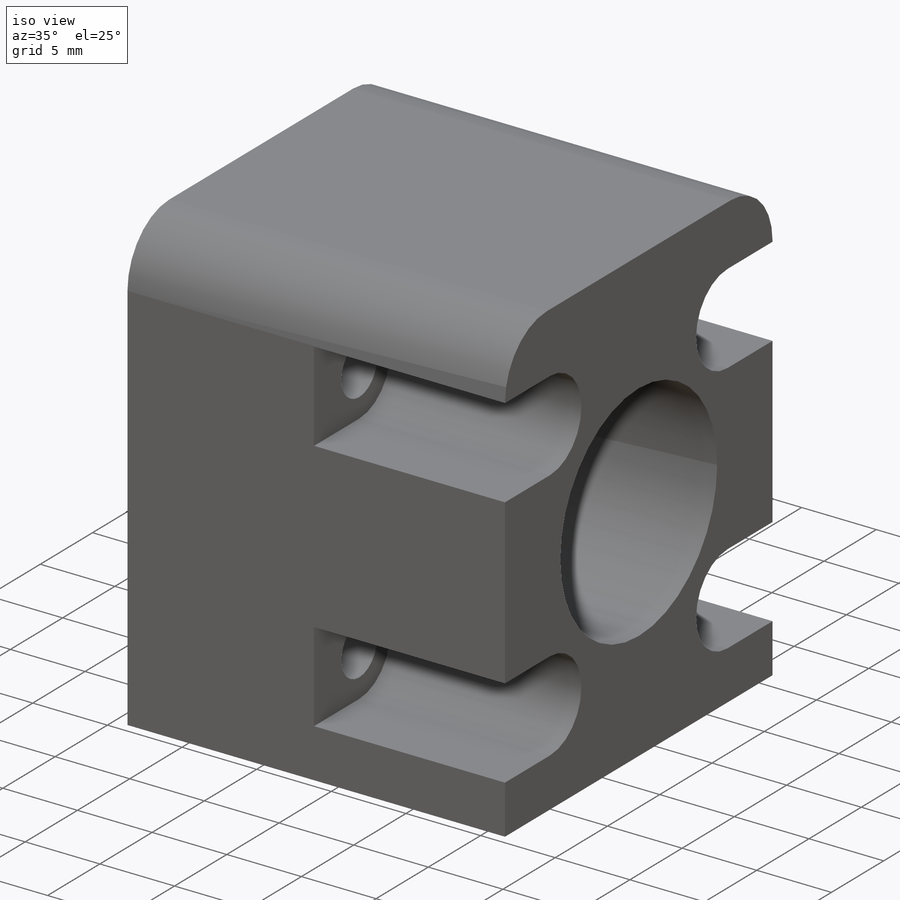
[diagram: iso view]
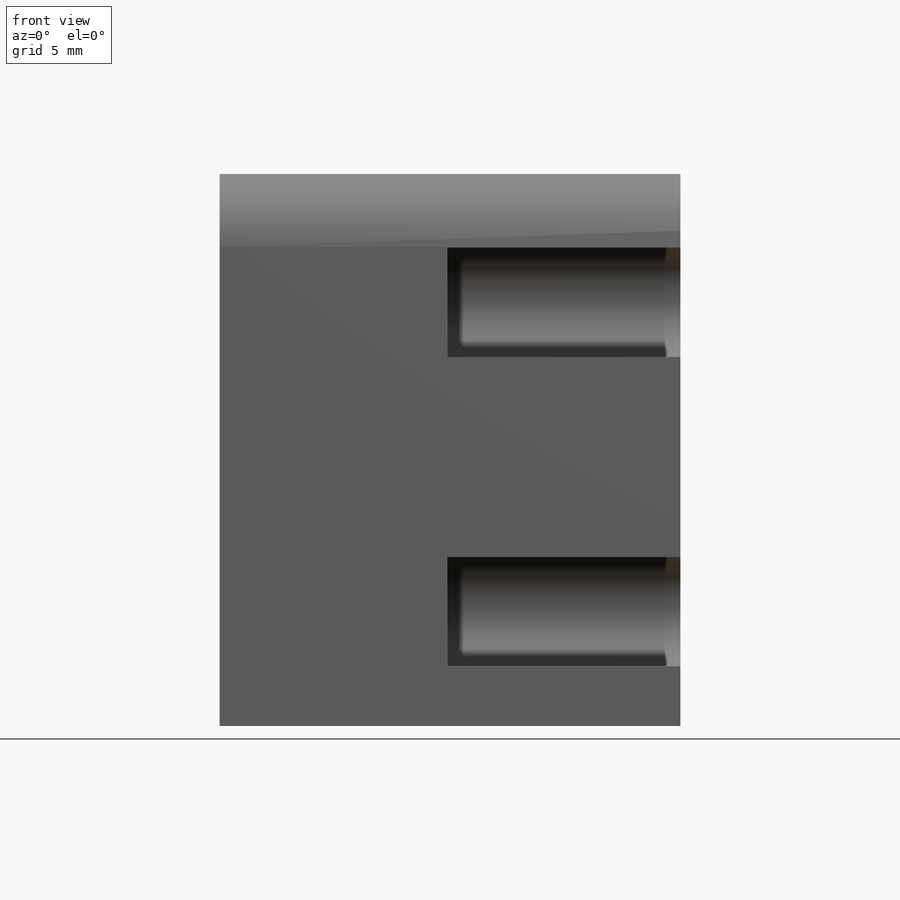
[diagram: front view]
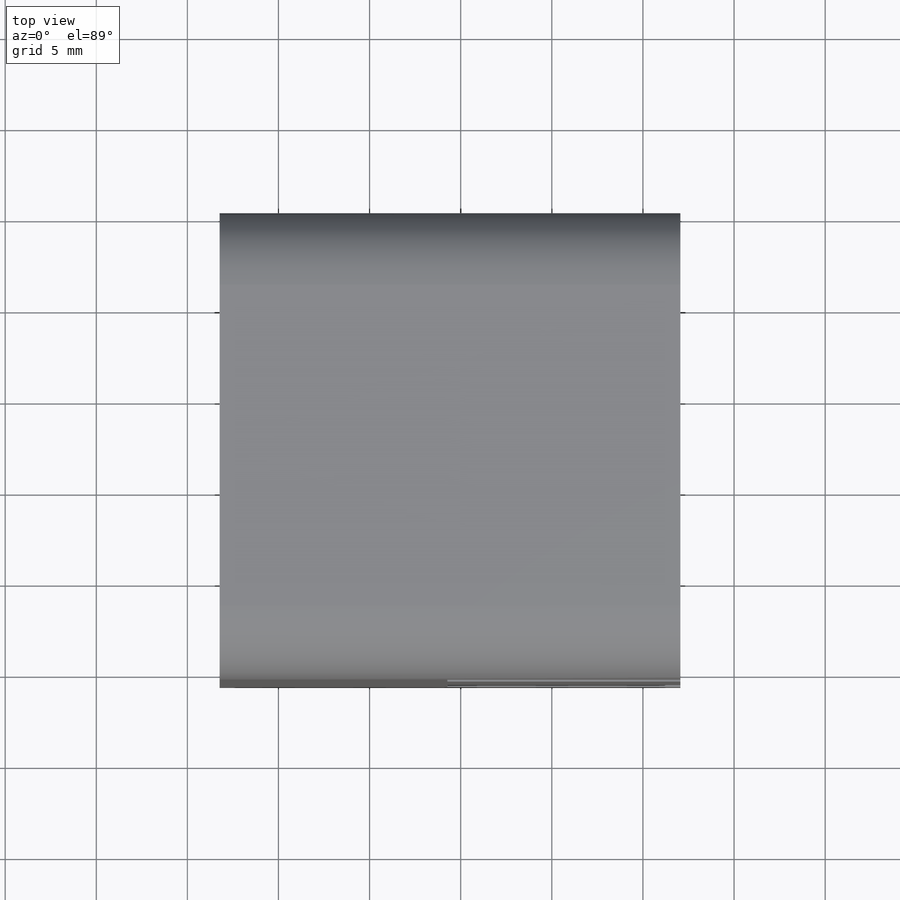
[diagram: top view]
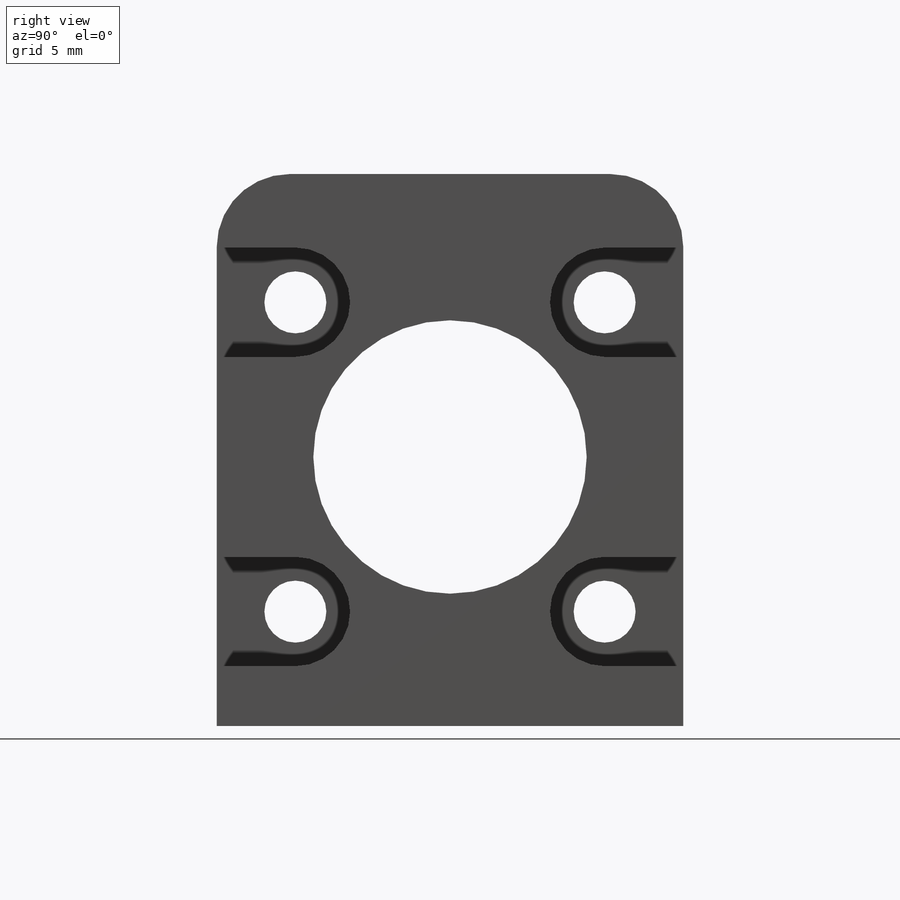
[diagram: right view]
SOLIDWORKS PART (.sldprt)
format: sldprt  version: not decoded by parser v0  size: 563,200 bytes
history: native  units: mm
features: fillet x17, sketch x8, cut_extrude x7, plane x4, material x1, extrude x1 (+10 scaffold rows collapsed)
feature tree (48):
  scaffold x10  (default folders/planes/origin — collapsed)
  material  "Matériau <non spécifié>"
  plane  "Plan de face"
  plane  "Plan de dessus"
  plane  "Plan de droite"
  sketch  "Esquisse1"  dims[c1.D8=~1.523201mm c1.D9=~2.130306mm c1.D10=~1.121657mm c1.D11=~2.638479mm c1.D13=1.58mm c1.D14=1.85mm c1.D21=1.7mm c1.D1=50.0mm c1.D2=50.0mm c1.D3=26.63mm c1.D4=26.63mm c1.D5=2.41mm c1.D6=14.0mm c1.D7=7.5mm c2.D8=64.0mm c2.D9=5.78mm c2.D10=35.0mm c2.D11=~20.304376mm c2.D12=~20.304376mm c3.D11=2.65mm c3.D12=12.76mm c3.D13=12.0mm c3.D14=140.0mm c3.D15=59.0mm c3.D16=0.0mm c3.D17=~1.317562mm c3.D18=15.4mm c3.D19=12.0mm c3.D20=0.0mm c3.D2=75.24mm c3.D3=48.2mm c3.D4=6.22mm c3.D5=0.0mm c3.D6=1.14mm c4.D14=~56.388371deg]
  extrude  "Boss.-Extru.1"  Depth=25.6mm
  sketch  "Esquisse2"  dims[c1.D1=~3.017458mm c1.D3=2.8mm c1.D2=~14.791215mm c2.D1=12.0mm c3.D1=135.0deg c4.D1=12.0mm c5.D1=135.0deg c6.D1=12.0mm c7.D1=135.0deg c8.D1=30.0mm c8.D2=30.0mm]
  cut_extrude  "Enlèv. mat.-Extru.1"  Depth=5mm
  sketch  "Esquisse3"
  cut_extrude  "Enlèv. mat.-Extru.2"  Depth=82mm
  sketch  "Esquisse4"  dims[c1.D1=12.0mm c2.D1=45.0deg c3.D1=12.0mm c4.D1=45.0deg c5.D1=12.0mm c6.D1=45.0deg c7.D1=12.0mm c8.D1=45.0deg c9.D1=12.0mm c10.D1=135.0deg]
  cut_extrude  "Enlèv. mat.-Extru.3"  Depth=5mm
  fillet  "Congé1"  Radius=4mm
  sketch  "Esquisse5"  dims[D1=~1.621483mm]
  cut_extrude  "Enlèv. mat.-Extru.4"  Depth=71mm
  plane  "Plan1"
  sketch  "Esquisse6"  dims[D1=2.825mm]
  fillet  "Bloc1-2"  [1 undecoded]
  fillet  "Bloc1-3"  [1 undecoded]
  fillet  "Bloc1-4"  [1 undecoded]
  fillet  "Bloc1-5"  [1 undecoded]
  fillet  "Bloc1-6"  [1 undecoded]
  fillet  "Bloc1-7"  [1 undecoded]
  fillet  "Bloc1-8"  [1 undecoded]
  fillet  "Bloc1-9"  [1 undecoded]
  fillet  "Bloc1-10"  [1 undecoded]
  fillet  "Bloc1-11"  [1 undecoded]
  fillet  "Bloc1-12"  [1 undecoded]
  fillet  "Bloc1-13"  [1 undecoded]
  fillet  "Bloc1-14"  [1 undecoded]
  fillet  "Bloc1-15"  [1 undecoded]
  fillet  "Bloc1-16"  [1 undecoded]
  fillet  "Bloc1-17"  Radius=8mm
  cut_extrude  "Enlèv. mat.-Extru.5"  Depth=17mm
  sketch  "Esquisse7"
  cut_extrude  "Enlèv. mat.-Extru.6"  Depth=109.711688mm
  sketch  "Esquisse8"
  cut_extrude  "Enlèv. mat.-Extru.7"  Depth=33.711688mm
decode coverage: 15 of 33 modeling features carry decoded parameters
note: ~ marks probable driven/reference dimensions
note: 15 parameter values undecoded
summary: no parameter record found for 15 features
note: suppression state not decoded; provenance and decode notes live in map.json
